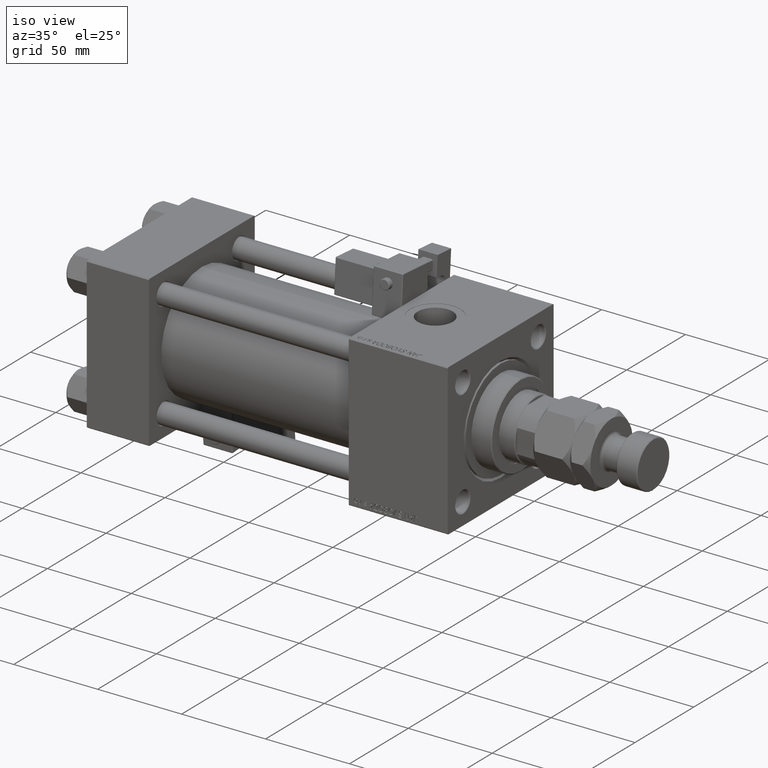
[diagram: clean part render]
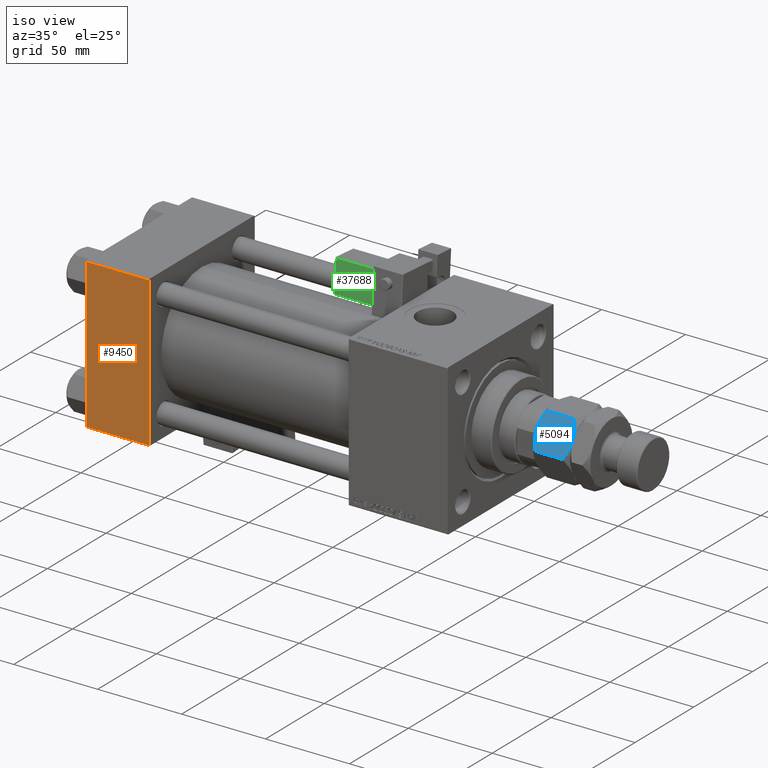
[diagram: same view with three faces highlighted in distinct colors, each labeled with its STEP entity id]
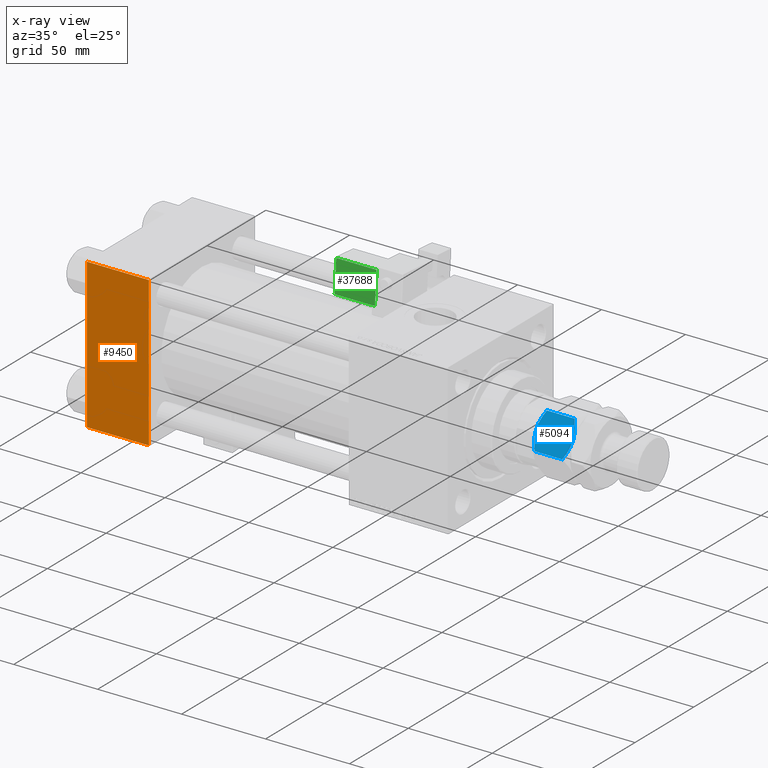
[diagram: x-ray of the same camera — body ghosted, the three highlighted faces saturated]
A machine part, iso view with three faces highlighted in distinct colors.
The next image is the same camera in x-ray (body ghosted, the three faces saturated) — at least one of them is partly hidden behind the body in this view.
Their STEP definitions:

[orange] entity #9450 — the highlighted planar face has unit normal (0, 1, 0).
#2833 = VERTEX_POINT ( 'NONE', #18447 ) ;
#5445 = LINE ( 'NONE', #13945, #53361 ) ;
#7679 = CARTESIAN_POINT ( 'NONE',  ( 0.000000000000000000, -45.00000000000000000, 44.49999999999998579 ) ) ;
#8090 = VECTOR ( 'NONE', #14918, 1000.000000000000000 ) ;
#9171 = EDGE_CURVE ( 'NONE', #28855, #2833, #43046, .T. ) ;
#9450 = ADVANCED_FACE ( 'NONE', ( #43460 ), #18530, .F. ) ;
#10282 = LINE ( 'NONE', #18472, #8090 ) ;
#10487 = CARTESIAN_POINT ( 'NONE',  ( 37.00000000000000000, -45.00000000000000000, -44.49999999999997158 ) ) ;
#11066 = DIRECTION ( 'NONE',  ( 1.000000000000000000, 0.000000000000000000, 0.000000000000000000 ) ) ;
#13945 = CARTESIAN_POINT ( 'NONE',  ( 37.00000000000000000, -45.00000000000000000, 44.99999999999998579 ) ) ;
#14176 = DIRECTION ( 'NONE',  ( 0.000000000000000000, -0.000000000000000000, 1.000000000000000000 ) ) ;
#14918 = DIRECTION ( 'NONE',  ( -1.000000000000000000, 0.000000000000000000, 0.000000000000000000 ) ) ;
#15202 = EDGE_LOOP ( 'NONE', ( #50978, #44846, #35079, #30919 ) ) ;
#17498 = DIRECTION ( 'NONE',  ( 0.000000000000000000, 0.000000000000000000, -1.000000000000000000 ) ) ;
#17870 = DIRECTION ( 'NONE',  ( 0.000000000000000000, 0.000000000000000000, -1.000000000000000000 ) ) ;
#18447 = CARTESIAN_POINT ( 'NONE',  ( 0.000000000000000000, -45.00000000000000000, -44.49999999999997158 ) ) ;
#18472 = CARTESIAN_POINT ( 'NONE',  ( 37.00000000000000000, -45.00000000000000000, 44.49999999999998579 ) ) ;
#18530 = PLANE ( 'NONE',  #35365 ) ;
#19737 = EDGE_CURVE ( 'NONE', #29406, #49825, #5445, .T. ) ;
#23266 = VECTOR ( 'NONE', #11066, 1000.000000000000000 ) ;
#24300 = EDGE_CURVE ( 'NONE', #29406, #28855, #10282, .T. ) ;
#27004 = DIRECTION ( 'NONE',  ( -0.000000000000000000, 1.000000000000000000, 0.000000000000000000 ) ) ;
#28337 = VECTOR ( 'NONE', #17870, 1000.000000000000000 ) ;
#28855 = VERTEX_POINT ( 'NONE', #7679 ) ;
#29406 = VERTEX_POINT ( 'NONE', #32449 ) ;
#30858 = CARTESIAN_POINT ( 'NONE',  ( 37.00000000000000000, -45.00000000000000000, 44.99999999999998579 ) ) ;
#30919 = ORIENTED_EDGE ( 'NONE', *, *, #24300, .T. ) ;
#32449 = CARTESIAN_POINT ( 'NONE',  ( 37.00000000000000000, -45.00000000000000000, 44.49999999999998579 ) ) ;
#35079 = ORIENTED_EDGE ( 'NONE', *, *, #19737, .F. ) ;
#35365 = AXIS2_PLACEMENT_3D ( 'NONE', #30858, #27004, #14176 ) ;
#36954 = EDGE_CURVE ( 'NONE', #2833, #49825, #41140, .T. ) ;
#41140 = LINE ( 'NONE', #49618, #23266 ) ;
#43046 = LINE ( 'NONE', #43848, #28337 ) ;
#43460 = FACE_OUTER_BOUND ( 'NONE', #15202, .T. ) ;
#43848 = CARTESIAN_POINT ( 'NONE',  ( 0.000000000000000000, -45.00000000000000000, 44.99999999999998579 ) ) ;
#44846 = ORIENTED_EDGE ( 'NONE', *, *, #36954, .T. ) ;
#49618 = CARTESIAN_POINT ( 'NONE',  ( 37.00000000000000000, -45.00000000000000000, -44.50000000000000000 ) ) ;
#49825 = VERTEX_POINT ( 'NONE', #10487 ) ;
#50978 = ORIENTED_EDGE ( 'NONE', *, *, #9171, .T. ) ;
#53361 = VECTOR ( 'NONE', #17498, 1000.000000000000000 ) ;

[blue] entity #5094 — the highlighted planar face has unit normal (-0, 0.866, -0.5).
#25 = VERTEX_POINT ( 'NONE', #47158 ) ;
#766 = EDGE_CURVE ( 'NONE', #25, #45121, #34400, .T. ) ;
#1714 = CARTESIAN_POINT ( 'NONE',  ( -18.00000000000000000, -10.39230484541326582, 2.784609690826517436 ) ) ;
#2733 = CARTESIAN_POINT ( 'NONE',  ( -18.00000000000000000, -10.39230484541326582, 19.21539030917347901 ) ) ;
#2992 = B_SPLINE_CURVE_WITH_KNOTS ( 'NONE', 3,
 ( #48579, #27781, #20672, #28036, #23945, #3164, #19851, #16576, #41188, #11371 ),
 .UNSPECIFIED., .F., .F.,
 ( 4, 2, 2, 2, 4 ),
 ( 2.544307986796311447E-07, 0.005386537354063076002, 0.008079678815695275074, 0.009426249546511373742, 0.01077282027732747068 ),
 .UNSPECIFIED. ) ;
#3164 = CARTESIAN_POINT ( 'NONE',  ( -10.97671975407795131, -14.44719758599054060, 21.86127740090141458 ) ) ;
#3266 = CARTESIAN_POINT ( 'NONE',  ( -1.411330396252045816, -19.96977770663490759, 1.969777706634897152 ) ) ;
#5094 = ADVANCED_FACE ( 'NONE', ( #31291 ), #35114, .F. ) ;
#6273 = ORIENTED_EDGE ( 'NONE', *, *, #10860, .F. ) ;
#9203 = CARTESIAN_POINT ( 'NONE',  ( -5.711424626294094742E-16, -20.78460969082652454, 2.784609690826514772 ) ) ;
#9495 = CARTESIAN_POINT ( 'NONE',  ( -10.56546083169953576, -14.68463803553235181, 8.233160247311796338E-16 ) ) ;
#10860 = EDGE_CURVE ( 'NONE', #40573, #14471, #40836, .T. ) ;
#11371 = CARTESIAN_POINT ( 'NONE',  ( -8.999999999999994671, -15.58845726811989252, 22.00000000000000000 ) ) ;
#12424 = CARTESIAN_POINT ( 'NONE',  ( -8.999999999999994671, -15.58845726811989252, 22.00000000000000000 ) ) ;
#13577 = CARTESIAN_POINT ( 'NONE',  ( -8.999999999999994671, -15.58845726811989252, 22.00000000000000000 ) ) ;
#13605 = CARTESIAN_POINT ( 'NONE',  ( -16.59030399953601176, -11.20619321075668928, 1.970721325483051567 ) ) ;
#13873 = CARTESIAN_POINT ( 'NONE',  ( -15.13928418966203004, -12.04393988858690712, 1.272574701504241901 ) ) ;
#14471 = VERTEX_POINT ( 'NONE', #9203 ) ;
#14997 = EDGE_CURVE ( 'NONE', #26189, #45121, #16124, .T. ) ;
#15586 = DIRECTION ( 'NONE',  ( -0.000000000000000000, -0.000000000000000000, -1.000000000000000000 ) ) ;
#16124 = LINE ( 'NONE', #45127, #50395 ) ;
#16465 = ORIENTED_EDGE ( 'NONE', *, *, #14997, .T. ) ;
#16576 = CARTESIAN_POINT ( 'NONE',  ( -9.790461530629873010, -15.13208409062669624, 21.98266714352591222 ) ) ;
#17133 = CARTESIAN_POINT ( 'NONE',  ( -7.434539168300457135, -16.49227650070744033, 22.00000000000000000 ) ) ;
#18685 = DIRECTION ( 'NONE',  ( -0.8660254037844387076, 0.4999999999999998335, 0.000000000000000000 ) ) ;
#19851 = CARTESIAN_POINT ( 'NONE',  ( -10.58425150785354241, -14.67378923359658316, 21.91305310988184374 ) ) ;
#19951 = CARTESIAN_POINT ( 'NONE',  ( -2.854601888853810721, -19.13650452186755757, 1.277383077889868046 ) ) ;
#20212 = CARTESIAN_POINT ( 'NONE',  ( -8.209538469370123437, -16.04483044561309768, 0.01733285647409000055 ) ) ;
#20398 = ORIENTED_EDGE ( 'NONE', *, *, #42562, .F. ) ;
#20492 = CARTESIAN_POINT ( 'NONE',  ( -5.097327296964719423, -17.84166640377631197, 0.5370855558290080767 ) ) ;
#20672 = CARTESIAN_POINT ( 'NONE',  ( -15.14539811114618573, -12.04041001437222569, 20.72261692211012729 ) ) ;
#21221 = CARTESIAN_POINT ( 'NONE',  ( -2.860715810337963294, -19.13297464765287614, 20.72742529849575277 ) ) ;
#21321 = B_SPLINE_CURVE_WITH_KNOTS ( 'NONE', 3,
 ( #45398, #3266, #19951, #20492, #37474, #36653, #28413, #20212, #28953, #36919 ),
 .UNSPECIFIED., .F., .F.,
 ( 4, 2, 2, 2, 4 ),
 ( 2.544307986815391393E-07, 0.005386537354063073400, 0.008079678815695269870, 0.009426249546511366803, 0.01077282027732746374 ),
 .UNSPECIFIED. ) ;
#21338 = AXIS2_PLACEMENT_3D ( 'NONE', #47690, #27690, #18685 ) ;
#23945 = CARTESIAN_POINT ( 'NONE',  ( -12.14199022028319774, -13.77442836864821984, 21.65943689774472602 ) ) ;
#24321 = EDGE_LOOP ( 'NONE', ( #20398, #6273, #42830, #31343, #16465, #53564 ) ) ;
#26125 = CARTESIAN_POINT ( 'NONE',  ( -5.895697476400521886, -17.38072716576608912, 21.72360409287842131 ) ) ;
#26189 = VERTEX_POINT ( 'NONE', #2733 ) ;
#27690 = DIRECTION ( 'NONE',  ( 0.4999999999999998335, 0.8660254037844387076, -0.000000000000000000 ) ) ;
#27781 = CARTESIAN_POINT ( 'NONE',  ( -16.58866960374795241, -11.20713682960488633, 20.03022229336509596 ) ) ;
#28036 = CARTESIAN_POINT ( 'NONE',  ( -12.90267270303527525, -13.33524813246347129, 21.46291444417098049 ) ) ;
#28413 = CARTESIAN_POINT ( 'NONE',  ( -7.415748492146452264, -16.50312530264320898, 0.08694689011815484592 ) ) ;
#28497 = DIRECTION ( 'NONE',  ( -0.000000000000000000, -0.000000000000000000, -1.000000000000000000 ) ) ;
#28953 = CARTESIAN_POINT ( 'NONE',  ( -8.605874323383764235, -15.81600583360881807, 9.080193194566099635E-16 ) ) ;
#29510 = EDGE_CURVE ( 'NONE', #41906, #40573, #30053, .T. ) ;
#30053 = B_SPLINE_CURVE_WITH_KNOTS ( 'NONE', 3,
 ( #13577, #17133, #26125, #21221, #46400, #38736 ),
 .UNSPECIFIED., .F., .F.,
 ( 4, 2, 4 ),
 ( 0.01077282027732747068, 0.01612137750481873466, 0.02146993473230999691 ),
 .UNSPECIFIED. ) ;
#30555 = CARTESIAN_POINT ( 'NONE',  ( -8.999999999999996447, -15.58845726811989607, 0.000000000000000000 ) ) ;
#31291 = FACE_OUTER_BOUND ( 'NONE', #24321, .T. ) ;
#31343 = ORIENTED_EDGE ( 'NONE', *, *, #43611, .F. ) ;
#32088 = CARTESIAN_POINT ( 'NONE',  ( -8.673617379884035472E-16, -20.78460969082652454, 22.00000000000000000 ) ) ;
#34400 = B_SPLINE_CURVE_WITH_KNOTS ( 'NONE', 3,
 ( #30555, #9495, #51079, #13873, #13605, #47229 ),
 .UNSPECIFIED., .F., .F.,
 ( 4, 2, 4 ),
 ( 0.01077282027732746374, 0.01612137750481872772, 0.02146993473230999344 ),
 .UNSPECIFIED. ) ;
#35114 = PLANE ( 'NONE',  #21338 ) ;
#36653 = CARTESIAN_POINT ( 'NONE',  ( -7.023280245922045140, -16.72971695024925509, 0.1387225990985768986 ) ) ;
#36919 = CARTESIAN_POINT ( 'NONE',  ( -8.999999999999996447, -15.58845726811989607, 0.000000000000000000 ) ) ;
#37474 = CARTESIAN_POINT ( 'NONE',  ( -5.858009779716799592, -17.40248616759157230, 0.3405631022552689235 ) ) ;
#38736 = CARTESIAN_POINT ( 'NONE',  ( -6.333703707815436362E-16, -20.78460969082652454, 19.21539030917348256 ) ) ;
#40573 = VERTEX_POINT ( 'NONE', #52576 ) ;
#40836 = LINE ( 'NONE', #32088, #42401 ) ;
#41188 = CARTESIAN_POINT ( 'NONE',  ( -9.394125676616230436, -15.36090870263097230, 22.00000000000000000 ) ) ;
#41906 = VERTEX_POINT ( 'NONE', #12424 ) ;
#42401 = VECTOR ( 'NONE', #28497, 1000.000000000000000 ) ;
#42562 = EDGE_CURVE ( 'NONE', #14471, #25, #21321, .T. ) ;
#42830 = ORIENTED_EDGE ( 'NONE', *, *, #29510, .F. ) ;
#43611 = EDGE_CURVE ( 'NONE', #26189, #41906, #2992, .T. ) ;
#45121 = VERTEX_POINT ( 'NONE', #1714 ) ;
#45127 = CARTESIAN_POINT ( 'NONE',  ( -18.00000000000000000, -10.39230484541326582, 22.00000000000000000 ) ) ;
#45398 = CARTESIAN_POINT ( 'NONE',  ( -5.711424626294094742E-16, -20.78460969082652454, 2.784609690826514772 ) ) ;
#46400 = CARTESIAN_POINT ( 'NONE',  ( -1.409696000463988463, -19.97072132548310108, 20.02927867451694510 ) ) ;
#47158 = CARTESIAN_POINT ( 'NONE',  ( -8.999999999999996447, -15.58845726811989607, 0.000000000000000000 ) ) ;
#47229 = CARTESIAN_POINT ( 'NONE',  ( -18.00000000000000000, -10.39230484541326582, 2.784609690826517436 ) ) ;
#47690 = CARTESIAN_POINT ( 'NONE',  ( -18.00000000000000000, -10.39230484541326582, 22.00000000000000000 ) ) ;
#48579 = CARTESIAN_POINT ( 'NONE',  ( -18.00000000000000000, -10.39230484541326582, 19.21539030917347901 ) ) ;
#50395 = VECTOR ( 'NONE', #15586, 1000.000000000000000 ) ;
#51079 = CARTESIAN_POINT ( 'NONE',  ( -12.10430252359947723, -13.79618737047370303, 0.2763959071215840724 ) ) ;
#52576 = CARTESIAN_POINT ( 'NONE',  ( -6.333703707815436362E-16, -20.78460969082652454, 19.21539030917348256 ) ) ;
#53564 = ORIENTED_EDGE ( 'NONE', *, *, #766, .F. ) ;

[green] entity #37688 — the highlighted planar face has unit normal (0, 0.9975, -0.07).
#774 = FACE_OUTER_BOUND ( 'NONE', #17875, .T. ) ;
#1578 = VERTEX_POINT ( 'NONE', #48636 ) ;
#3158 = EDGE_CURVE ( 'NONE', #17668, #39818, #38390, .T. ) ;
#4406 = ORIENTED_EDGE ( 'NONE', *, *, #28118, .T. ) ;
#4921 = DIRECTION ( 'NONE',  ( -1.734723475976807587E-16, -0.000000000000000000, 1.000000000000000000 ) ) ;
#5330 = VERTEX_POINT ( 'NONE', #52474 ) ;
#7721 = ORIENTED_EDGE ( 'NONE', *, *, #38413, .T. ) ;
#10262 = EDGE_CURVE ( 'NONE', #39818, #5330, #26269, .T. ) ;
#12232 = CARTESIAN_POINT ( 'NONE',  ( 33.24999999999999289, -36.25000000000000000, 21.50000000000000000 ) ) ;
#14173 = PLANE ( 'NONE',  #40775 ) ;
#15597 = ORIENTED_EDGE ( 'NONE', *, *, #3158, .T. ) ;
#17668 = VERTEX_POINT ( 'NONE', #12232 ) ;
#17875 = EDGE_LOOP ( 'NONE', ( #45584, #7721, #4406, #15597 ) ) ;
#18888 = DIRECTION ( 'NONE',  ( 1.334402673828313339E-16, 0.000000000000000000, -1.000000000000000000 ) ) ;
#19499 = LINE ( 'NONE', #20312, #48690 ) ;
#20312 = CARTESIAN_POINT ( 'NONE',  ( 33.75000000000000000, -36.25000000000000000, 2.500000000000009326 ) ) ;
#22682 = CARTESIAN_POINT ( 'NONE',  ( 9.250000000000003553, -36.25000000000000000, 21.50000000000000000 ) ) ;
#23605 = DIRECTION ( 'NONE',  ( 1.000000000000000000, -0.000000000000000000, 1.334402673828313339E-16 ) ) ;
#26269 = LINE ( 'NONE', #51741, #46724 ) ;
#28118 = EDGE_CURVE ( 'NONE', #1578, #17668, #45692, .T. ) ;
#28169 = VECTOR ( 'NONE', #4921, 1000.000000000000000 ) ;
#29893 = CARTESIAN_POINT ( 'NONE',  ( 33.75000000000000000, -36.25000000000000000, 21.50000000000000000 ) ) ;
#30331 = DIRECTION ( 'NONE',  ( -0.000000000000000000, 1.000000000000000000, 0.000000000000000000 ) ) ;
#31725 = VECTOR ( 'NONE', #46579, 1000.000000000000000 ) ;
#33125 = CARTESIAN_POINT ( 'NONE',  ( 33.24999999999999289, -36.25000000000000000, 22.00000000000000355 ) ) ;
#37688 = ADVANCED_FACE ( 'NONE', ( #774 ), #14173, .F. ) ;
#38390 = LINE ( 'NONE', #29893, #31725 ) ;
#38413 = EDGE_CURVE ( 'NONE', #5330, #1578, #19499, .T. ) ;
#39603 = DIRECTION ( 'NONE',  ( 0.000000000000000000, -0.000000000000000000, 1.000000000000000000 ) ) ;
#39818 = VERTEX_POINT ( 'NONE', #22682 ) ;
#40775 = AXIS2_PLACEMENT_3D ( 'NONE', #51925, #30331, #39603 ) ;
#45584 = ORIENTED_EDGE ( 'NONE', *, *, #10262, .T. ) ;
#45692 = LINE ( 'NONE', #33125, #28169 ) ;
#46579 = DIRECTION ( 'NONE',  ( -1.000000000000000000, 0.000000000000000000, -1.334402673828313339E-16 ) ) ;
#46724 = VECTOR ( 'NONE', #18888, 1000.000000000000000 ) ;
#48636 = CARTESIAN_POINT ( 'NONE',  ( 33.24999999999999289, -36.25000000000000000, 2.500000000000008438 ) ) ;
#48690 = VECTOR ( 'NONE', #23605, 1000.000000000000000 ) ;
#51741 = CARTESIAN_POINT ( 'NONE',  ( 9.250000000000005329, -36.25000000000000000, 2.000000000000005329 ) ) ;
#51925 = CARTESIAN_POINT ( 'NONE',  ( 33.75000000000000000, -36.25000000000000000, 22.00000000000000355 ) ) ;
#52474 = CARTESIAN_POINT ( 'NONE',  ( 9.250000000000005329, -36.25000000000000000, 2.500000000000004885 ) ) ;